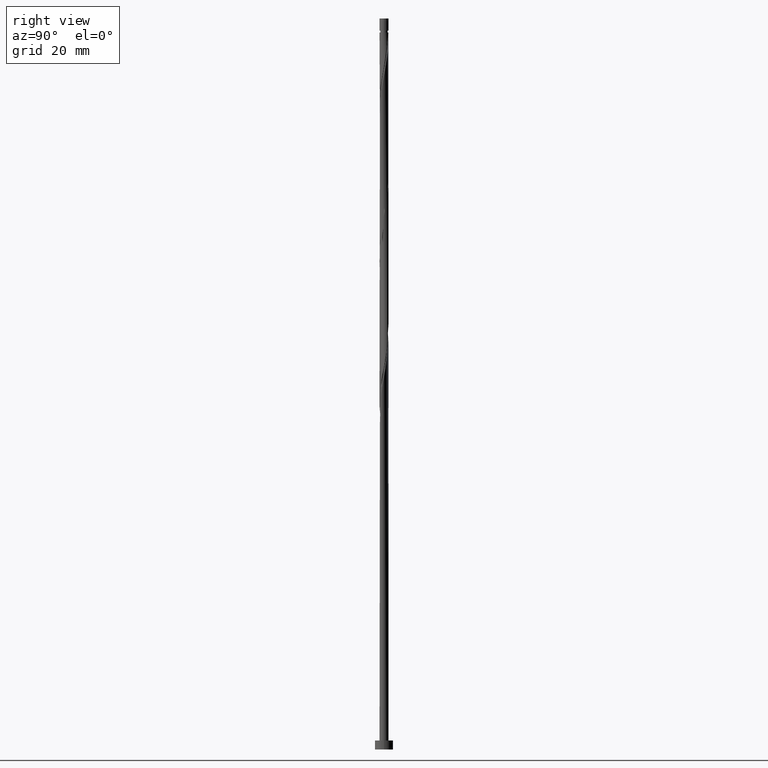
[diagram: clean part render]
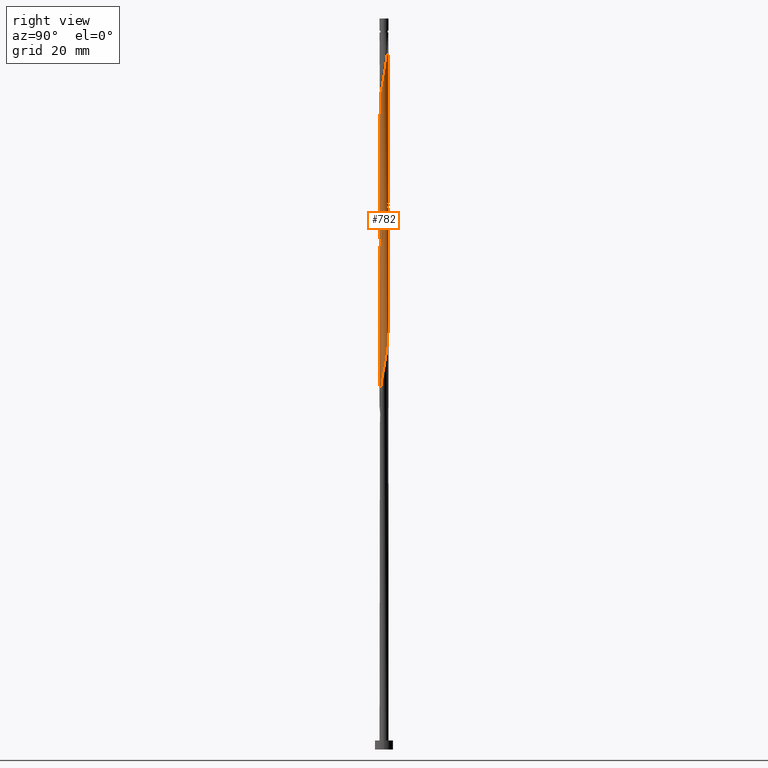
[diagram: same view with one face highlighted and labeled with its STEP entity id]
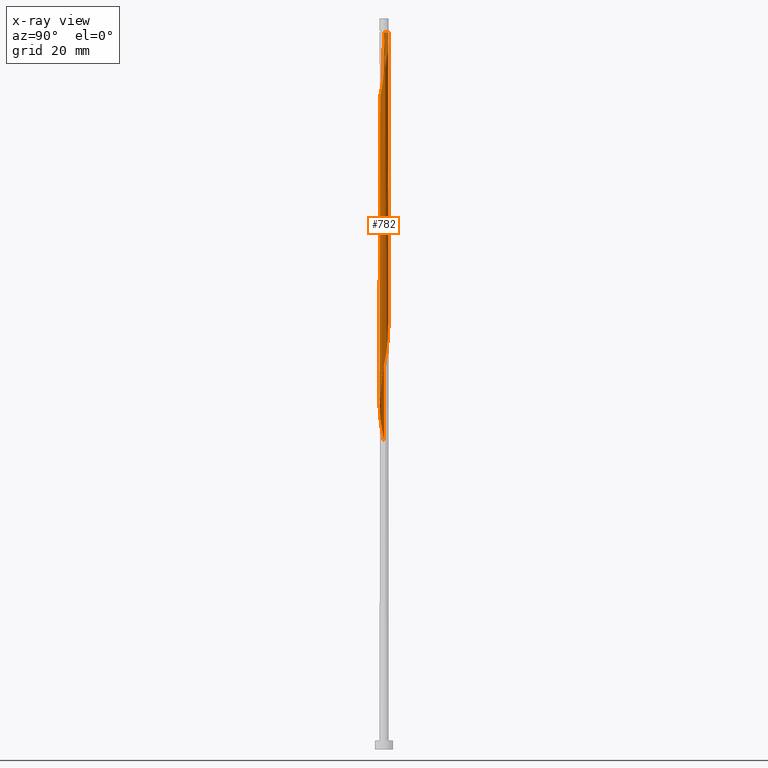
[diagram: x-ray of the same camera — body ghosted, the highlighted face saturated]
A machine part, right view. The second image highlights one B-rep face of the part: STEP entity #782.
The next image is the same camera in x-ray: the body ghosted, the highlighted face saturated — about 0% of this face is hidden behind the body in this view.
In plain terms, the highlighted cylindrical surface (bore or boss wall) has radius 1 mm, axis along (-0, -0, -1).
Its self-contained STEP definition (entity closure, byte-faithful):
#1 = LINE ( 'NONE', #1600, #1458 ) ;
#5 = EDGE_CURVE ( 'NONE', #994, #1163, #228, .T. ) ;
#11 = ORIENTED_EDGE ( 'NONE', *, *, #135, .F. ) ;
#24 = CARTESIAN_POINT ( 'NONE',  ( 0.4424964979548788868, -0.9063824962005115893, 79.05015800052746044 ) ) ;
#31 = CARTESIAN_POINT ( 'NONE',  ( -0.1928297432528302269, 0.9900247826383187233, 94.32793577830523191 ) ) ;
#41 = CARTESIAN_POINT ( 'NONE',  ( -0.5522521727681102277, 0.8336771183575236721, 96.41126911163856050 ) ) ;
#53 = CARTESIAN_POINT ( 'NONE',  ( -0.9900247826383187233, -0.1928297432528299771, 69.32793577830524612 ) ) ;
#66 = CARTESIAN_POINT ( 'NONE',  ( -0.8364044564148300775, 0.5637020182777559008, 131.8279357783052319 ) ) ;
#75 = CARTESIAN_POINT ( 'NONE',  ( -0.4458594766673666943, -0.8951029700910978493, 107.5223802227496606 ) ) ;
#84 = CARTESIAN_POINT ( 'NONE',  ( 0.1989974874213295553, 0.9800000000000006484, 125.5779357783052319 ) ) ;
#98 = CARTESIAN_POINT ( 'NONE',  ( -0.7492061519980853790, -0.6623368793961456058, 136.6890468894163746 ) ) ;
#102 = FACE_OUTER_BOUND ( 'NONE', #598, .T. ) ;
#112 = CARTESIAN_POINT ( 'NONE',  ( -0.9981116494354765889, -0.06142585173357430206, 101.9668246671941176 ) ) ;
#114 = ORIENTED_EDGE ( 'NONE', *, *, #304, .F. ) ;
#116 = CARTESIAN_POINT ( 'NONE',  ( -0.6620078475813415686, -0.7609717405145355329, 137.3834913338608317 ) ) ;
#129 = CARTESIAN_POINT ( 'NONE',  ( -1.000000000000001554, 1.831838594343459279E-16, 132.8477024564284932 ) ) ;
#135 = EDGE_CURVE ( 'NONE', #1287, #784, #408, .T. ) ;
#162 = ORIENTED_EDGE ( 'NONE', *, *, #1563, .F. ) ;
#167 = CARTESIAN_POINT ( 'NONE',  ( -0.8336771183575236721, -0.5522521727681102277, 71.41126911163854629 ) ) ;
#174 = CARTESIAN_POINT ( 'NONE',  ( 0.3176631206038543209, -0.9482036394194148787, 78.35571355608301758 ) ) ;
#183 = CARTESIAN_POINT ( 'NONE',  ( -0.7609717405145361990, -0.6620078475813411245, 72.10571355608301758 ) ) ;
#187 = LINE ( 'NONE', #1398, #869 ) ;
#192 = CARTESIAN_POINT ( 'NONE',  ( 0.9900247826383189453, 0.1928297432528296163, 85.99460244497188910 ) ) ;
#209 = CARTESIAN_POINT ( 'NONE',  ( 0.06997803978568135908, 1.006198516232634788, 126.2723802227496748 ) ) ;
#222 = CARTESIAN_POINT ( 'NONE',  ( 1.000000000000001110, -0.1005037815259271911, 117.7747427309926849 ) ) ;
#228 = CIRCLE ( 'NONE', #380, 0.9999999999999926725 ) ;
#231 = CARTESIAN_POINT ( 'NONE',  ( 0.8951029700910975162, -0.4458594766673671383, 115.8557135560830034 ) ) ;
#249 = CARTESIAN_POINT ( 'NONE',  ( 0.7492061519980861561, 0.6623368793961452727, 153.3557135560830034 ) ) ;
#258 = CARTESIAN_POINT ( 'NONE',  ( 0.3176631206038553201, 0.9482036394194147677, 156.1334913338607748 ) ) ;
#284 = CARTESIAN_POINT ( 'NONE',  ( -0.06142585173357442002, 0.9981116494354765889, 93.63349133386078904 ) ) ;
#292 = CARTESIAN_POINT ( 'NONE',  ( -0.3280169350569777653, -0.9538014837673659541, 74.88349133386081746 ) ) ;
#294 = ORIENTED_EDGE ( 'NONE', *, *, #924, .F. ) ;
#299 = CARTESIAN_POINT ( 'NONE',  ( 0.9063824962005117003, 0.4424964979548782762, 87.38349133386078904 ) ) ;
#303 = CARTESIAN_POINT ( 'NONE',  ( -0.4424964979548791089, 0.9063824962005115893, 129.0501580005274604 ) ) ;
#304 = EDGE_CURVE ( 'NONE', #882, #1163, #1066, .T. ) ;
#317 = CARTESIAN_POINT ( 'NONE',  ( 0.5637020182777562338, 0.8364044564148295224, 90.16126911163858892 ) ) ;
#321 = CARTESIAN_POINT ( 'NONE',  ( 0.6623368793961459389, 0.7492061519980853790, 122.8001580005274320 ) ) ;
#328 = ORIENTED_EDGE ( 'NONE', *, *, #5, .T. ) ;
#339 = CARTESIAN_POINT ( 'NONE',  ( -0.6620078475813413466, 0.7609717405145359770, 130.4390468894163178 ) ) ;
#345 = DIRECTION ( 'NONE',  ( -0.000000000000000000, -0.000000000000000000, -1.000000000000000000 ) ) ;
#347 = CARTESIAN_POINT ( 'NONE',  ( 0.8336771183575232280, -0.5522521727681107828, 146.4112691116386031 ) ) ;
#352 = CARTESIAN_POINT ( 'NONE',  ( -0.3280169350569777653, -0.9538014837673659541, 108.2168246671941318 ) ) ;
#354 = VERTEX_POINT ( 'NONE', #1226 ) ;
#355 = EDGE_CURVE ( 'NONE', #994, #1287, #1, .T. ) ;
#361 = CARTESIAN_POINT ( 'NONE',  ( -0.6623368793961457168, -0.7492061519980853790, 106.1334913338607748 ) ) ;
#371 = CARTESIAN_POINT ( 'NONE',  ( -0.06142585173357467676, -0.9981116494354764779, 140.8557135560830034 ) ) ;
#377 = CARTESIAN_POINT ( 'NONE',  ( -0.1989974874213562006, 0.9800000000002699885, 158.9112691116385747 ) ) ;
#380 = AXIS2_PLACEMENT_3D ( 'NONE', #757, #776, #1171 ) ;
#408 =( BOUNDED_CURVE ( )  B_SPLINE_CURVE ( 2, ( #703, #931, #544, #1572, #923, #66, #1438, #339, #1197, #303, #1050, #1212, #1329, #209, #84, #578, #792, #1580, #321, #561, #1204, #938, #684, #1318, #455, #815, #1303 ),
 .UNSPECIFIED., .F., .T. ) 
 B_SPLINE_CURVE_WITH_KNOTS ( ( 3, 2, 2, 2, 2, 2, 2, 2, 2, 2, 2, 2, 2, 3 ),
 ( 0.4295317669814460726, 0.4375000000000000000, 0.4479166666666666852, 0.4583333333333333148, 0.4687500000000000000, 0.4791666666666666852, 0.4895833333333333148, 0.5000000000000000000, 0.5104166666666666297, 0.5208333333333333703, 0.5312500000000000000, 0.5416666666666666297, 0.5520833333333333703, 0.5545317669814463502 ),
 .UNSPECIFIED. ) 
 CURVE ( )  GEOMETRIC_REPRESENTATION_ITEM ( )  RATIONAL_B_SPLINE_CURVE ( ( 0.9062941362546347301, 0.9031415850403387013, 0.9090909090909141677, 0.9013135103398325354, 0.9090909090909141677, 0.9013135103398325354, 0.9090909090909141677, 0.9013135103398325354, 0.9090909090909141677, 0.9013135103398325354, 0.9090909090909141677, 0.9013135103398325354, 0.9090909090909141677, 0.9013135103398325354, 0.9090909090909141677, 0.9013135103398325354, 0.9090909090909141677, 0.9013135103398325354, 0.9090909090909141677, 0.9013135103398325354, 0.9090909090909141677, 0.9013135103398325354, 0.9090909090909141677, 0.9013135103398325354, 0.9090909090909141677, 0.9072628343904078907, 0.9062941362546345081 ) ) 
 REPRESENTATION_ITEM ( '' )  );
#419 = CARTESIAN_POINT ( 'NONE',  ( -0.9981116494354765889, -0.06142585173357430206, 68.63349133386078904 ) ) ;
#423 = CARTESIAN_POINT ( 'NONE',  ( -0.9482036394194148787, -0.3176631206038545430, 103.3557135560830034 ) ) ;
#427 = CARTESIAN_POINT ( 'NONE',  ( 0.8364044564148296335, -0.5637020182777561228, 81.82793577830524612 ) ) ;
#436 = CARTESIAN_POINT ( 'NONE',  ( 0.06142585173357401063, -0.9981116494354765889, 76.96682466719411764 ) ) ;
#455 = CARTESIAN_POINT ( 'NONE',  ( 0.9981116494354765889, 0.06142585173357395512, 118.6334913338607890 ) ) ;
#485 = CARTESIAN_POINT ( 'NONE',  ( -1.006198516232635010, 0.06997803978568162275, 101.2723802227496464 ) ) ;
#495 = CARTESIAN_POINT ( 'NONE',  ( 0.9800000000000006484, 0.1989974874213291944, 150.5779357783052319 ) ) ;
#504 = DIRECTION ( 'NONE',  ( -0.000000000000000000, -0.000000000000000000, -1.000000000000000000 ) ) ;
#521 = CARTESIAN_POINT ( 'NONE',  ( -1.000000000000001554, -0.03074195165767059160, 68.47133278821013391 ) ) ;
#537 = CARTESIAN_POINT ( 'NONE',  ( 0.4458594766673671939, 0.8951029700910975162, 90.85571355608303179 ) ) ;
#544 = CARTESIAN_POINT ( 'NONE',  ( -0.9800000000000006484, 0.1989974874213293887, 133.9112691116385747 ) ) ;
#557 = CARTESIAN_POINT ( 'NONE',  ( -1.000000000000001554, 1.383225061034872699E-16, 134.9748357668486562 ) ) ;
#561 = CARTESIAN_POINT ( 'NONE',  ( 0.7609717405145361990, 0.6620078475813409025, 122.1057135560830034 ) ) ;
#568 = CYLINDRICAL_SURFACE ( 'NONE', #580, 1.000000000000000000 ) ;
#577 = CARTESIAN_POINT ( 'NONE',  ( 0.5522521727681096726, -0.8336771183575236721, 113.0779357783052461 ) ) ;
#578 = CARTESIAN_POINT ( 'NONE',  ( 0.3280169350569783759, 0.9538014837673656210, 124.8834913338608175 ) ) ;
#580 = AXIS2_PLACEMENT_3D ( 'NONE', #1604, #345, #1043 ) ;
#589 = ORIENTED_EDGE ( 'NONE', *, *, #1563, .T. ) ;
#591 = CARTESIAN_POINT ( 'NONE',  ( 0.9482036394194149898, -0.3176631206038552646, 147.8001580005274604 ) ) ;
#598 = EDGE_LOOP ( 'NONE', ( #1509, #328, #114, #1547, #294, #162, #589, #11 ) ) ;
#605 = CARTESIAN_POINT ( 'NONE',  ( -0.9538014837673659541, 0.3280169350569774878, 99.88349133386077483 ) ) ;
#607 = CARTESIAN_POINT ( 'NONE',  ( -0.3176631206038551536, -0.9482036394194149898, 139.4668246671941461 ) ) ;
#617 = CARTESIAN_POINT ( 'NONE',  ( 0.5522521727681106718, 0.8336771183575233390, 154.7446024449719175 ) ) ;
#626 = CARTESIAN_POINT ( 'NONE',  ( 0.1989974874213292777, -0.9800000000000006484, 142.2446024449719744 ) ) ;
#654 = CARTESIAN_POINT ( 'NONE',  ( -0.9482036394194148787, -0.3176631206038545430, 70.02238022274967477 ) ) ;
#663 = CARTESIAN_POINT ( 'NONE',  ( -0.5637020182777559008, -0.8364044564148298555, 73.49460244497190331 ) ) ;
#664 = VECTOR ( 'NONE', #1147, 1000.000000000000000 ) ;
#670 = CARTESIAN_POINT ( 'NONE',  ( 1.000000000000000000, 1.224646799147353207E-16, 162.0000000000000000 ) ) ;
#674 = CARTESIAN_POINT ( 'NONE',  ( 0.6620078475813409025, -0.7609717405145360880, 80.43904688941636039 ) ) ;
#684 = CARTESIAN_POINT ( 'NONE',  ( 0.9482036394194151008, 0.3176631206038539879, 120.0223802227496890 ) ) ;
#702 = CARTESIAN_POINT ( 'NONE',  ( 0.1928297432528296440, -0.9900247826383189453, 110.9946024449719033 ) ) ;
#703 = CARTESIAN_POINT ( 'NONE',  ( -1.000000000000001554, 1.383225061034872699E-16, 134.9748357668486562 ) ) ;
#709 = CARTESIAN_POINT ( 'NONE',  ( 0.8364044564148296335, -0.5637020182777561228, 115.1612691116385605 ) ) ;
#717 = CARTESIAN_POINT ( 'NONE',  ( 0.9981116494354764779, -0.06142585173357523187, 149.1890468894164314 ) ) ;
#722 = CARTESIAN_POINT ( 'NONE',  ( -0.7609717405145361990, -0.6620078475813411245, 105.4390468894163746 ) ) ;
#725 = CARTESIAN_POINT ( 'NONE',  ( -0.5522521727681104498, -0.8336771183575233390, 138.0779357783052319 ) ) ;
#741 = CARTESIAN_POINT ( 'NONE',  ( -0.8364044564148300775, -0.5637020182777553456, 135.9946024449719175 ) ) ;
#749 = CARTESIAN_POINT ( 'NONE',  ( 0.06997803978568098437, -1.006198516232634788, 141.5501580005274889 ) ) ;
#757 = CARTESIAN_POINT ( 'NONE',  ( 0.000000000000000000, 0.000000000000000000, 158.9112691116385747 ) ) ;
#774 = CARTESIAN_POINT ( 'NONE',  ( -0.6623368793961457168, -0.7492061519980853790, 72.80015800052744623 ) ) ;
#776 = DIRECTION ( 'NONE',  ( -0.000000000000000000, -0.000000000000000000, -1.000000000000000000 ) ) ;
#779 =( BOUNDED_CURVE ( )  B_SPLINE_CURVE ( 2, ( #1203, #222, #1082, #972, #231, #709, #1304, #1220, #577, #1485, #1596, #702, #1211, #1355, #963, #352, #75, #1427, #361, #722, #847, #1548, #423, #914, #112, #485, #984, #605, #1108, #1614, #904, #1048, #41, #1408, #1054, #31, #284, #1559, #1301, #1415, #537, #317, #1424, #1308, #797, #299, #1544, #192, #896, #1169, #1149, #1551, #1538, #427, #918, #674, #789, #24, #174, #1442, #436, #1024, #912, #292, #928, #663, #774, #183, #167, #1178, #654, #53, #419, #521, #1283 ),
 .UNSPECIFIED., .F., .T. ) 
 B_SPLINE_CURVE_WITH_KNOTS ( ( 3, 2, 2, 2, 2, 2, 2, 2, 2, 2, 2, 2, 2, 2, 2, 2, 2, 2, 2, 2, 2, 2, 2, 2, 2, 2, 2, 2, 2, 2, 2, 2, 2, 2, 2, 2, 2, 3 ),
 ( 0.5545317669814463502, 0.5625000000000000000, 0.5729166666666666297, 0.5833333333333333703, 0.5937500000000000000, 0.6041666666666666297, 0.6145833333333333703, 0.6250000000000000000, 0.6354166666666666297, 0.6458333333333333703, 0.6562500000000000000, 0.6666666666666666297, 0.6770833333333333703, 0.6875000000000000000, 0.6979166666666666297, 0.7083333333333333703, 0.7187500000000000000, 0.7291666666666666297, 0.7395833333333333703, 0.7500000000000000000, 0.7604166666666666297, 0.7708333333333333703, 0.7812500000000000000, 0.7916666666666666297, 0.8020833333333333703, 0.8125000000000000000, 0.8229166666666666297, 0.8333333333333333703, 0.8437500000000000000, 0.8541666666666666297, 0.8645833333333333703, 0.8750000000000000000, 0.8854166666666666297, 0.8958333333333333703, 0.9062500000000000000, 0.9166666666666666297, 0.9270833333333333703, 0.9295317669814461281 ),
 .UNSPECIFIED. ) 
 CURVE ( )  GEOMETRIC_REPRESENTATION_ITEM ( )  RATIONAL_B_SPLINE_CURVE ( ( 0.9062941362546345081, 0.9031415850403388124, 0.9090909090909141677, 0.9013135103398325354, 0.9090909090909141677, 0.9013135103398325354, 0.9090909090909141677, 0.9013135103398325354, 0.9090909090909141677, 0.9013135103398325354, 0.9090909090909141677, 0.9013135103398325354, 0.9090909090909141677, 0.9013135103398325354, 0.9090909090909141677, 0.9013135103398325354, 0.9090909090909141677, 0.9013135103398325354, 0.9090909090909141677, 0.9013135103398325354, 0.9090909090909141677, 0.9013135103398325354, 0.9090909090909141677, 0.9013135103398325354, 0.9090909090909141677, 0.9013135103398325354, 0.9090909090909141677, 0.9013135103398325354, 0.9090909090909141677, 0.9013135103398325354, 0.9090909090909141677, 0.9013135103398325354, 0.9090909090909141677, 0.9013135103398325354, 0.9090909090909141677, 0.9013135103398325354, 0.9090909090909141677, 0.9013135103398325354, 0.9090909090909141677, 0.9013135103398325354, 0.9090909090909141677, 0.9013135103398325354, 0.9090909090909141677, 0.9013135103398325354, 0.9090909090909141677, 0.9013135103398325354, 0.9090909090909141677, 0.9013135103398325354, 0.9090909090909141677, 0.9013135103398325354, 0.9090909090909141677, 0.9013135103398325354, 0.9090909090909141677, 0.9013135103398325354, 0.9090909090909141677, 0.9013135103398325354, 0.9090909090909141677, 0.9013135103398325354, 0.9090909090909141677, 0.9013135103398325354, 0.9090909090909141677, 0.9013135103398325354, 0.9090909090909141677, 0.9013135103398325354, 0.9090909090909141677, 0.9013135103398325354, 0.9090909090909141677, 0.9013135103398325354, 0.9090909090909141677, 0.9013135103398325354, 0.9090909090909141677, 0.9013135103398325354, 0.9090909090909141677, 0.9072628343904080017, 0.9062941362546346191 ) ) 
 REPRESENTATION_ITEM ( '' )  );
#782 = ADVANCED_FACE ( 'NONE', ( #102 ), #568, .T. ) ;
#784 = VERTEX_POINT ( 'NONE', #1099 ) ;
#789 = CARTESIAN_POINT ( 'NONE',  ( 0.5522521727681096726, -0.8336771183575236721, 79.74460244497190331 ) ) ;
#792 = CARTESIAN_POINT ( 'NONE',  ( 0.4458594766673671939, 0.8951029700910975162, 124.1890468894163462 ) ) ;
#797 = CARTESIAN_POINT ( 'NONE',  ( 0.8336771183575236721, 0.5522521727681100057, 88.07793577830520348 ) ) ;
#815 = CARTESIAN_POINT ( 'NONE',  ( 1.000000000000001776, 0.03074195165766751420, 118.4713327882101481 ) ) ;
#827 = CARTESIAN_POINT ( 'NONE',  ( -1.000000000000001554, 1.831838594343459526E-16, 132.8477024564284932 ) ) ;
#832 = CARTESIAN_POINT ( 'NONE',  ( -0.8951029700910981823, -0.4458594766673663057, 135.3001580005274604 ) ) ;
#847 = CARTESIAN_POINT ( 'NONE',  ( -0.8336771183575236721, -0.5522521727681102277, 104.7446024449719175 ) ) ;
#858 = CARTESIAN_POINT ( 'NONE',  ( 0.8951029700910982934, 0.4458594766673660281, 151.9668246671941461 ) ) ;
#867 = CARTESIAN_POINT ( 'NONE',  ( 0.6623368793961454948, -0.7492061519980859341, 145.0223802227496890 ) ) ;
#869 = VECTOR ( 'NONE', #1037, 1000.000000000000000 ) ;
#882 = VERTEX_POINT ( 'NONE', #827 ) ;
#896 = CARTESIAN_POINT ( 'NONE',  ( 0.9981116494354765889, 0.06142585173357395512, 85.30015800052747466 ) ) ;
#904 = CARTESIAN_POINT ( 'NONE',  ( -0.7492061519980856010, 0.6623368793961457168, 97.80015800052746044 ) ) ;
#912 = CARTESIAN_POINT ( 'NONE',  ( -0.1989974874213294720, -0.9800000000000006484, 75.57793577830521770 ) ) ;
#914 = CARTESIAN_POINT ( 'NONE',  ( -0.9900247826383187233, -0.1928297432528299771, 102.6612691116386031 ) ) ;
#918 = CARTESIAN_POINT ( 'NONE',  ( 0.7492061519980853790, -0.6623368793961460499, 81.13349133386081746 ) ) ;
#923 = CARTESIAN_POINT ( 'NONE',  ( -0.8951029700910978493, 0.4458594766673665832, 132.5223802227496890 ) ) ;
#924 = EDGE_CURVE ( 'NONE', #784, #1419, #779, .T. ) ;
#928 = CARTESIAN_POINT ( 'NONE',  ( -0.4458594766673666943, -0.8951029700910978493, 74.18904688941640302 ) ) ;
#931 = CARTESIAN_POINT ( 'NONE',  ( -1.000000000000001554, 0.1005037815259241796, 134.4414093976593563 ) ) ;
#938 = CARTESIAN_POINT ( 'NONE',  ( 0.9063824962005117003, 0.4424964979548782762, 120.7168246671941318 ) ) ;
#963 = CARTESIAN_POINT ( 'NONE',  ( -0.1989974874213294720, -0.9800000000000006484, 108.9112691116385321 ) ) ;
#972 = CARTESIAN_POINT ( 'NONE',  ( 0.9538014837673656210, -0.3280169350569782094, 116.5501580005274889 ) ) ;
#977 = CARTESIAN_POINT ( 'NONE',  ( 0.4424964979548794974, 0.9063824962005111452, 155.4390468894164030 ) ) ;
#984 = CARTESIAN_POINT ( 'NONE',  ( -0.9800000000000006484, 0.1989974874213293887, 100.5779357783052461 ) ) ;
#988 = CARTESIAN_POINT ( 'NONE',  ( 0.5637020182777551236, -0.8364044564148302996, 144.3279357783052319 ) ) ;
#994 = VERTEX_POINT ( 'NONE', #1314 ) ;
#995 = CARTESIAN_POINT ( 'NONE',  ( 0.9063824962005111452, -0.4424964979548794419, 147.1057135560830034 ) ) ;
#1024 = CARTESIAN_POINT ( 'NONE',  ( -0.06997803978568167826, -1.006198516232635010, 76.27238022274970319 ) ) ;
#1037 = DIRECTION ( 'NONE',  ( -0.000000000000000000, -0.000000000000000000, -1.000000000000000000 ) ) ;
#1043 = DIRECTION ( 'NONE',  ( -1.000000000000000000, 0.000000000000000000, 0.000000000000000000 ) ) ;
#1048 = CARTESIAN_POINT ( 'NONE',  ( -0.6620078475813413466, 0.7609717405145359770, 97.10571355608301758 ) ) ;
#1050 = CARTESIAN_POINT ( 'NONE',  ( -0.3176631206038546540, 0.9482036394194148787, 128.3557135560830034 ) ) ;
#1054 = CARTESIAN_POINT ( 'NONE',  ( -0.3176631206038546540, 0.9482036394194148787, 95.02238022274966056 ) ) ;
#1066 =( BOUNDED_CURVE ( )  B_SPLINE_CURVE ( 2, ( #129, #1241, #1129, #1489, #832, #741, #98, #116, #725, #1375, #607, #1619, #371, #749, #626, #1235, #1257, #988, #867, #1348, #347, #995, #591, #1626, #717, #1383, #495, #1497, #858, #1504, #249, #1092, #617, #977, #258, #1122, #1102, #1607, #377 ),
 .UNSPECIFIED., .F., .T. ) 
 B_SPLINE_CURVE_WITH_KNOTS ( ( 3, 2, 2, 2, 2, 2, 2, 2, 2, 2, 2, 2, 2, 2, 2, 2, 2, 2, 2, 3 ),
 ( 0.5545317669814463502, 0.5625000000000000000, 0.5729166666666667407, 0.5833333333333332593, 0.5937500000000000000, 0.6041666666666667407, 0.6145833333333332593, 0.6250000000000000000, 0.6354166666666667407, 0.6458333333333332593, 0.6562499999999998890, 0.6666666666666667407, 0.6770833333333331483, 0.6874999999999998890, 0.6979166666666666297, 0.7083333333333331483, 0.7187499999999998890, 0.7291666666666666297, 0.7395833333333331483, 0.7499999999999998890 ),
 .UNSPECIFIED. ) 
 CURVE ( )  GEOMETRIC_REPRESENTATION_ITEM ( )  RATIONAL_B_SPLINE_CURVE ( ( 0.9062941362546447222, 0.9031415850403492485, 0.9090909090909243817, 0.9013135103398429715, 0.9090909090909243817, 0.9013135103398429715, 0.9090909090909243817, 0.9013135103398429715, 0.9090909090909243817, 0.9013135103398429715, 0.9090909090909243817, 0.9013135103398429715, 0.9090909090909243817, 0.9013135103398429715, 0.9090909090909243817, 0.9013135103398429715, 0.9090909090909243817, 0.9013135103398429715, 0.9090909090909243817, 0.9013135103398429715, 0.9090909090909243817, 0.9013135103398429715, 0.9090909090909243817, 0.9013135103398429715, 0.9090909090909243817, 0.9013135103398429715, 0.9090909090909243817, 0.9013135103398429715, 0.9090909090909243817, 0.9013135103398429715, 0.9090909090909243817, 0.9013135103398429715, 0.9090909090909243817, 0.9013135103398429715, 0.9090909090909243817, 0.9013135103398429715, 0.9090909090909243817, 0.9013135103398429715, 0.9090909090909243817 ) ) 
 REPRESENTATION_ITEM ( '' )  );
#1072 = CARTESIAN_POINT ( 'NONE',  ( -1.000000000000001554, 4.785211021958479058E-16, 68.30816910018198485 ) ) ;
#1080 = CARTESIAN_POINT ( 'NONE',  ( -0.1989974874213562006, 0.9800000000002699885, 158.9112691116385747 ) ) ;
#1082 = CARTESIAN_POINT ( 'NONE',  ( 0.9800000000000006484, -0.1989974874213294720, 117.2446024449719033 ) ) ;
#1092 = CARTESIAN_POINT ( 'NONE',  ( 0.6620078475813419017, 0.7609717405145354219, 154.0501580005274320 ) ) ;
#1099 = CARTESIAN_POINT ( 'NONE',  ( 1.000000000000001554, -7.177816532937719572E-16, 118.3081691001819848 ) ) ;
#1102 = CARTESIAN_POINT ( 'NONE',  ( 0.06142585173357528738, 0.9981116494354764779, 157.5223802227497174 ) ) ;
#1108 = CARTESIAN_POINT ( 'NONE',  ( -0.8951029700910978493, 0.4458594766673665832, 99.18904688941634618 ) ) ;
#1122 = CARTESIAN_POINT ( 'NONE',  ( 0.1928297432528308653, 0.9900247826383183902, 156.8279357783052603 ) ) ;
#1129 = CARTESIAN_POINT ( 'NONE',  ( -0.9800000000000006484, -0.1989974874213293055, 133.9112691116386316 ) ) ;
#1147 = DIRECTION ( 'NONE',  ( -0.000000000000000000, -0.000000000000000000, -1.000000000000000000 ) ) ;
#1149 = CARTESIAN_POINT ( 'NONE',  ( 0.9800000000000006484, -0.1989974874213294720, 83.91126911163857471 ) ) ;
#1163 = VERTEX_POINT ( 'NONE', #1080 ) ;
#1169 = CARTESIAN_POINT ( 'NONE',  ( 1.006198516232635010, -0.06997803978568173378, 84.60571355608301758 ) ) ;
#1171 = DIRECTION ( 'NONE',  ( -1.000000000000000000, 0.000000000000000000, 0.000000000000000000 ) ) ;
#1178 = CARTESIAN_POINT ( 'NONE',  ( -0.9063824962005115893, -0.4424964979548788868, 70.71682466719410343 ) ) ;
#1181 = LINE ( 'NONE', #670, #664 ) ;
#1197 = CARTESIAN_POINT ( 'NONE',  ( -0.5522521727681102277, 0.8336771183575236721, 129.7446024449718891 ) ) ;
#1203 = CARTESIAN_POINT ( 'NONE',  ( 1.000000000000001554, -7.177816532937719572E-16, 118.3081691001819848 ) ) ;
#1204 = CARTESIAN_POINT ( 'NONE',  ( 0.8336771183575236721, 0.5522521727681100057, 121.4112691116385463 ) ) ;
#1211 = CARTESIAN_POINT ( 'NONE',  ( 0.06142585173357401063, -0.9981116494354765889, 110.3001580005274604 ) ) ;
#1212 = CARTESIAN_POINT ( 'NONE',  ( -0.1928297432528302269, 0.9900247826383187233, 127.6612691116385747 ) ) ;
#1220 = CARTESIAN_POINT ( 'NONE',  ( 0.6620078475813409025, -0.7609717405145360880, 113.7723802227496606 ) ) ;
#1226 = CARTESIAN_POINT ( 'NONE',  ( 1.000000000000000000, 1.224646799147353207E-16, 158.9112691116385747 ) ) ;
#1235 = CARTESIAN_POINT ( 'NONE',  ( 0.3280169350569771547, -0.9538014837673662871, 142.9390468894163178 ) ) ;
#1241 = CARTESIAN_POINT ( 'NONE',  ( -1.000000000000000666, -0.1005037815259278433, 133.3811288256178216 ) ) ;
#1257 = CARTESIAN_POINT ( 'NONE',  ( 0.4458594766673661391, -0.8951029700910982934, 143.6334913338608033 ) ) ;
#1283 = CARTESIAN_POINT ( 'NONE',  ( -1.000000000000001554, 4.785211021958479058E-16, 68.30816910018198485 ) ) ;
#1287 = VERTEX_POINT ( 'NONE', #557 ) ;
#1301 = CARTESIAN_POINT ( 'NONE',  ( 0.1989974874213295553, 0.9800000000000006484, 92.24460244497190331 ) ) ;
#1303 = CARTESIAN_POINT ( 'NONE',  ( 1.000000000000001554, -7.177816532937719572E-16, 118.3081691001819848 ) ) ;
#1304 = CARTESIAN_POINT ( 'NONE',  ( 0.7492061519980853790, -0.6623368793961460499, 114.4668246671941034 ) ) ;
#1308 = CARTESIAN_POINT ( 'NONE',  ( 0.7609717405145361990, 0.6620078475813409025, 88.77238022274966056 ) ) ;
#1314 = CARTESIAN_POINT ( 'NONE',  ( -0.9999999999999926725, 0.000000000000000000, 158.9112691116385747 ) ) ;
#1318 = CARTESIAN_POINT ( 'NONE',  ( 0.9900247826383189453, 0.1928297432528296163, 119.3279357783052461 ) ) ;
#1329 = CARTESIAN_POINT ( 'NONE',  ( -0.06142585173357442002, 0.9981116494354765889, 126.9668246671941176 ) ) ;
#1348 = CARTESIAN_POINT ( 'NONE',  ( 0.7609717405145355329, -0.6620078475813415686, 145.7168246671940608 ) ) ;
#1355 = CARTESIAN_POINT ( 'NONE',  ( -0.06997803978568167826, -1.006198516232635010, 109.6057135560830176 ) ) ;
#1375 = CARTESIAN_POINT ( 'NONE',  ( -0.4424964979548793864, -0.9063824962005112562, 138.7723802227496606 ) ) ;
#1383 = CARTESIAN_POINT ( 'NONE',  ( 1.006198516232634788, 0.06997803978568042926, 149.8834913338607464 ) ) ;
#1398 = CARTESIAN_POINT ( 'NONE',  ( -1.000000000000000000, 0.000000000000000000, 162.0000000000000000 ) ) ;
#1408 = CARTESIAN_POINT ( 'NONE',  ( -0.4424964979548791089, 0.9063824962005115893, 95.71682466719414606 ) ) ;
#1415 = CARTESIAN_POINT ( 'NONE',  ( 0.3280169350569783759, 0.9538014837673656210, 91.55015800052748887 ) ) ;
#1419 = VERTEX_POINT ( 'NONE', #1072 ) ;
#1424 = CARTESIAN_POINT ( 'NONE',  ( 0.6623368793961459389, 0.7492061519980853790, 89.46682466719413185 ) ) ;
#1427 = CARTESIAN_POINT ( 'NONE',  ( -0.5637020182777559008, -0.8364044564148298555, 106.8279357783052461 ) ) ;
#1438 = CARTESIAN_POINT ( 'NONE',  ( -0.7492061519980856010, 0.6623368793961457168, 131.1334913338608033 ) ) ;
#1442 = CARTESIAN_POINT ( 'NONE',  ( 0.1928297432528296440, -0.9900247826383189453, 77.66126911163858892 ) ) ;
#1458 = VECTOR ( 'NONE', #504, 1000.000000000000000 ) ;
#1485 = CARTESIAN_POINT ( 'NONE',  ( 0.4424964979548788868, -0.9063824962005115893, 112.3834913338607890 ) ) ;
#1489 = CARTESIAN_POINT ( 'NONE',  ( -0.9538014837673660651, -0.3280169350569771547, 134.6057135560830034 ) ) ;
#1497 = CARTESIAN_POINT ( 'NONE',  ( 0.9538014837673662871, 0.3280169350569770437, 151.2723802227496321 ) ) ;
#1504 = CARTESIAN_POINT ( 'NONE',  ( 0.8364044564148302996, 0.5637020182777551236, 152.6612691116385747 ) ) ;
#1509 = ORIENTED_EDGE ( 'NONE', *, *, #355, .F. ) ;
#1516 = EDGE_CURVE ( 'NONE', #882, #1419, #187, .T. ) ;
#1538 = CARTESIAN_POINT ( 'NONE',  ( 0.8951029700910975162, -0.4458594766673671383, 82.52238022274968898 ) ) ;
#1544 = CARTESIAN_POINT ( 'NONE',  ( 0.9482036394194151008, 0.3176631206038539879, 86.68904688941633196 ) ) ;
#1547 = ORIENTED_EDGE ( 'NONE', *, *, #1516, .T. ) ;
#1548 = CARTESIAN_POINT ( 'NONE',  ( -0.9063824962005115893, -0.4424964979548788868, 104.0501580005274747 ) ) ;
#1551 = CARTESIAN_POINT ( 'NONE',  ( 0.9538014837673656210, -0.3280169350569782094, 83.21682466719410343 ) ) ;
#1559 = CARTESIAN_POINT ( 'NONE',  ( 0.06997803978568135908, 1.006198516232634788, 92.93904688941636039 ) ) ;
#1563 = EDGE_CURVE ( 'NONE', #354, #784, #1181, .T. ) ;
#1572 = CARTESIAN_POINT ( 'NONE',  ( -0.9538014837673659541, 0.3280169350569774878, 133.2168246671941461 ) ) ;
#1580 = CARTESIAN_POINT ( 'NONE',  ( 0.5637020182777562338, 0.8364044564148295224, 123.4946024449718891 ) ) ;
#1596 = CARTESIAN_POINT ( 'NONE',  ( 0.3176631206038543209, -0.9482036394194148787, 111.6890468894163604 ) ) ;
#1600 = CARTESIAN_POINT ( 'NONE',  ( -1.000000000000000000, 0.000000000000000000, 162.0000000000000000 ) ) ;
#1604 = CARTESIAN_POINT ( 'NONE',  ( 0.000000000000000000, 0.000000000000000000, 162.0000000000000000 ) ) ;
#1607 = CARTESIAN_POINT ( 'NONE',  ( -0.06997803978567891658, 1.006198516232634788, 158.2168246671940892 ) ) ;
#1614 = CARTESIAN_POINT ( 'NONE',  ( -0.8364044564148300775, 0.5637020182777559008, 98.49460244497188910 ) ) ;
#1619 = CARTESIAN_POINT ( 'NONE',  ( -0.1928297432528303101, -0.9900247826383183902, 140.1612691116386316 ) ) ;
#1626 = CARTESIAN_POINT ( 'NONE',  ( 0.9900247826383183902, -0.1928297432528308097, 148.4946024449718891 ) ) ;